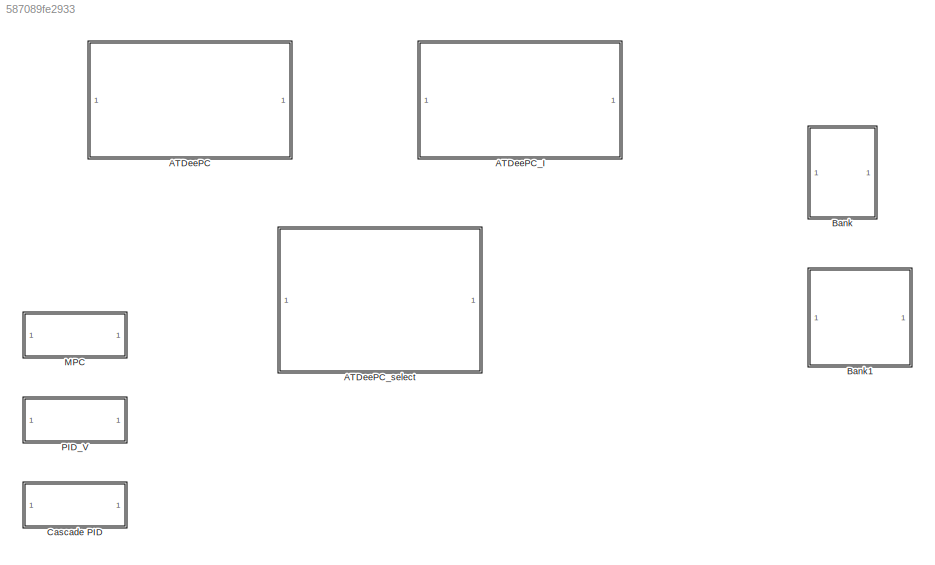
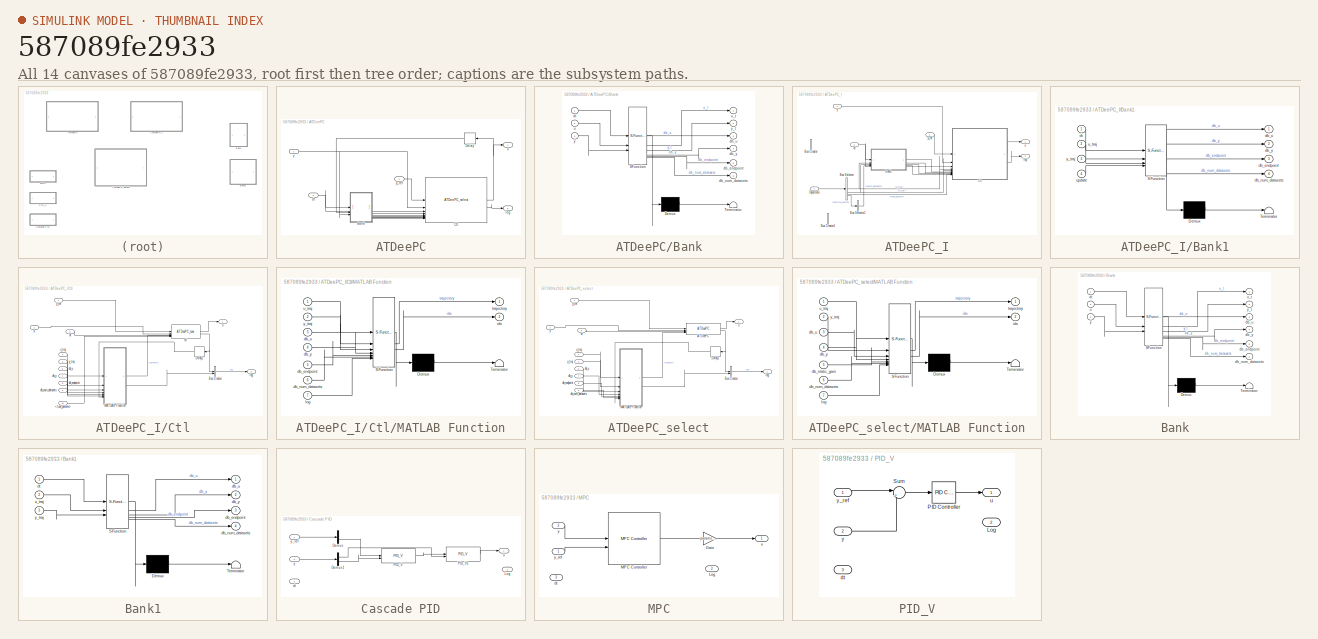
[diagram: thumbnail index - all 14 canvases of the model, root first then tree order]
MODEL slx_587089fe2933
KIND library
CONFIG AbsTol = auto
CONFIG EnableMultiTasking = off
CONFIG FixedStep = auto
CONFIG MaxStep = auto
CONFIG MinStep = auto
CONFIG RelTol = 1e-3
CONFIG SampleTimeConstraint = Unconstrained
CONFIG SolverName = VariableStepAuto
CONFIG StartTime = 0.0
CONFIG StopTime = 10.0
BLOCK [SubSystem] ATDeePC
  Tag = controller;
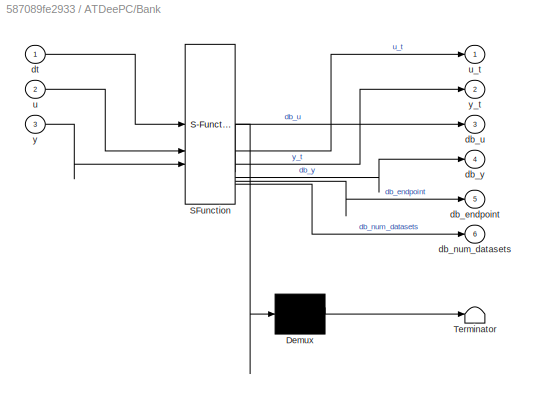
BLOCK [SubSystem] ATDeePC/Bank
  ErrorFcn = Stateflow.Translate.translate
  PermitHierarchicalResolution = ExplicitOnly
  SFBlockType = MATLAB Function
  TreatAsAtomicUnit = on
BLOCK [Demux] ATDeePC/Bank/ Demux 
  Outputs = 1
BLOCK [S-Function] ATDeePC/Bank/ SFunction 
  EnableBusSupport = off
  FunctionName = sf_sfun
  Parameters = data,db_params
  PortCounts = [3 7]
  SFcnIsStateOwnerBlock = off
  SFunctionDeploymentMode = off
  Tag = Stateflow S-Function 1
BLOCK [Terminator] ATDeePC/Bank/ Terminator 
BLOCK [Outport] ATDeePC/Bank/db_endpoint
  Port = 5
BLOCK [Outport] ATDeePC/Bank/db_num_datasets
  Port = 6
BLOCK [Outport] ATDeePC/Bank/db_u
  Port = 3
BLOCK [Outport] ATDeePC/Bank/db_y
  Port = 4
BLOCK [Inport] ATDeePC/Bank/dt
BLOCK [Inport] ATDeePC/Bank/u
  Port = 2
BLOCK [Outport] ATDeePC/Bank/u_t
BLOCK [Inport] ATDeePC/Bank/y
  Port = 3
BLOCK [Outport] ATDeePC/Bank/y_t
  Port = 2
BLOCK [Reference] ATDeePC/Ctl  REF=$bdroot/ATDeePC_select
  SourceBlock = $bdroot/ATDeePC_select
  SourceType = SubSystem
BLOCK [Delay] ATDeePC/Delay
  DelayLength = 1
  InputPortMap = u0
  NameLocation = top
BLOCK [Inport] ATDeePC/dt
  Port = 3
BLOCK [Outport] ATDeePC/log
  Port = 2
BLOCK [Outport] ATDeePC/u
BLOCK [Inport] ATDeePC/y
  Port = 2
BLOCK [Inport] ATDeePC/y_ref
BLOCK [SubSystem] ATDeePC_I
  Tag = controller;
BLOCK [SubSystem] ATDeePC_I/Bank1
  ErrorFcn = Stateflow.Translate.translate
  PermitHierarchicalResolution = ExplicitOnly
  SFBlockType = MATLAB Function
  TreatAsAtomicUnit = on
BLOCK [Demux] ATDeePC_I/Bank1/ Demux 
  Outputs = 1
BLOCK [S-Function] ATDeePC_I/Bank1/ SFunction 
  EnableBusSupport = off
  FunctionName = sf_sfun
  Parameters = data,db_params
  PortCounts = [4 5]
  SFcnIsStateOwnerBlock = off
  SFunctionDeploymentMode = off
  Tag = Stateflow S-Function 5
BLOCK [Terminator] ATDeePC_I/Bank1/ Terminator 
BLOCK [Outport] ATDeePC_I/Bank1/db_endpoint
  Port = 3
BLOCK [Outport] ATDeePC_I/Bank1/db_num_datasets
  Port = 4
BLOCK [Outport] ATDeePC_I/Bank1/db_u
BLOCK [Outport] ATDeePC_I/Bank1/db_y
  Port = 2
BLOCK [Inport] ATDeePC_I/Bank1/dt
BLOCK [Inport] ATDeePC_I/Bank1/u_traj
  Port = 2
BLOCK [Inport] ATDeePC_I/Bank1/update
  Port = 4
BLOCK [Inport] ATDeePC_I/Bank1/y_traj
  Port = 3
BLOCK [BusCreator] ATDeePC_I/Bus Creator
  DisplayOption = bar
  InheritFromInputs = on
  Inputs = 4
BLOCK [BusCreator] ATDeePC_I/Bus Creator1
  DisplayOption = bar
  InheritFromInputs = on
  Inputs = 1
BLOCK [BusSelector] ATDeePC_I/Bus Selector
  OutputSignals = u_traj,y_traj,tune_params,runtime_config
BLOCK [BusSelector] ATDeePC_I/Bus Selector1
  OutputSignals = record_datasets
BLOCK [SubSystem] ATDeePC_I/Ctl
  TreatAsAtomicUnit = on
BLOCK [Inport] ATDeePC_I/Ctl/<tune_params>
  Port = 10
BLOCK [BusCreator] ATDeePC_I/Ctl/Bus Creator
  DisplayOption = bar
  InheritFromInputs = on
  Inputs = 2
BLOCK [Delay] ATDeePC_I/Ctl/Delay1
  DelayLength = 1
  InputPortMap = u0
  NameLocation = top
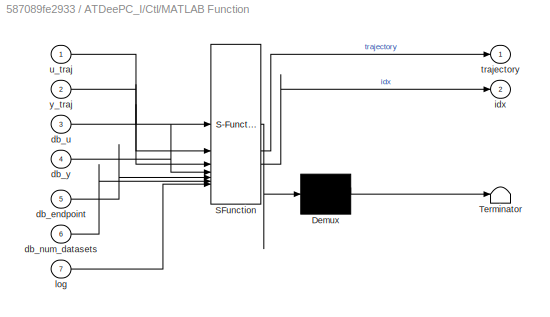
BLOCK [SubSystem] ATDeePC_I/Ctl/MATLAB Function
  ErrorFcn = Stateflow.Translate.translate
  PermitHierarchicalResolution = ExplicitOnly
  SFBlockType = MATLAB Function
  TreatAsAtomicUnit = on
BLOCK [Demux] ATDeePC_I/Ctl/MATLAB Function/ Demux 
  Outputs = 1
BLOCK [S-Function] ATDeePC_I/Ctl/MATLAB Function/ SFunction 
  EnableBusSupport = off
  FunctionName = sf_sfun
  Parameters = data,db_params
  PortCounts = [7 3]
  SFcnIsStateOwnerBlock = off
  SFunctionDeploymentMode = off
  Tag = Stateflow S-Function 6
BLOCK [Terminator] ATDeePC_I/Ctl/MATLAB Function/ Terminator 
BLOCK [Inport] ATDeePC_I/Ctl/MATLAB Function/db_endpoint
  Port = 5
BLOCK [Inport] ATDeePC_I/Ctl/MATLAB Function/db_num_datasets
  Port = 6
BLOCK [Inport] ATDeePC_I/Ctl/MATLAB Function/db_u
  Port = 3
BLOCK [Inport] ATDeePC_I/Ctl/MATLAB Function/db_y
  Port = 4
BLOCK [Outport] ATDeePC_I/Ctl/MATLAB Function/idx
  Port = 2
BLOCK [Inport] ATDeePC_I/Ctl/MATLAB Function/log
  Port = 7
BLOCK [Outport] ATDeePC_I/Ctl/MATLAB Function/trajectory
BLOCK [Inport] ATDeePC_I/Ctl/MATLAB Function/u_traj
BLOCK [Inport] ATDeePC_I/Ctl/MATLAB Function/y_traj
  Port = 2
BLOCK [Reference] ATDeePC_I/Ctl/ctl  REF=sim_lib/Controllers/ATDeePC_tune
  SourceBlock = sim_lib/Controllers/ATDeePC_tune
  Tag = controller;m_controller;
BLOCK [Inport] ATDeePC_I/Ctl/db_endpoint
  Port = 8
BLOCK [Inport] ATDeePC_I/Ctl/db_num_datasets
  Port = 9
BLOCK [Inport] ATDeePC_I/Ctl/db_u
  Port = 6
BLOCK [Inport] ATDeePC_I/Ctl/db_y
  Port = 7
BLOCK [Inport] ATDeePC_I/Ctl/dt
  Port = 3
BLOCK [Outport] ATDeePC_I/Ctl/log
  Port = 2
BLOCK [Outport] ATDeePC_I/Ctl/u
BLOCK [Inport] ATDeePC_I/Ctl/u_traj
  Port = 4
BLOCK [Inport] ATDeePC_I/Ctl/y
  Port = 2
BLOCK [Inport] ATDeePC_I/Ctl/y_ref
BLOCK [Inport] ATDeePC_I/Ctl/y_traj
  Port = 5
BLOCK [Inport] ATDeePC_I/InputData
  Port = 4
BLOCK [Inport] ATDeePC_I/dt
  Port = 3
BLOCK [Outport] ATDeePC_I/log
  Port = 2
BLOCK [Outport] ATDeePC_I/u
BLOCK [Inport] ATDeePC_I/y
  Port = 2
BLOCK [Inport] ATDeePC_I/y_ref
BLOCK [SubSystem] ATDeePC_select
  TreatAsAtomicUnit = on
BLOCK [Reference] ATDeePC_select/ATDeePC  REF=data_driven_lib_ctl/ATDeePC
  SourceBlock = data_driven_lib_ctl/ATDeePC
  Tag = __cs_comptype:ctl;__cs_compimpl:mat;
BLOCK [BusCreator] ATDeePC_select/Bus Creator
  DisplayOption = bar
  InheritFromInputs = on
  Inputs = 2
BLOCK [Delay] ATDeePC_select/Delay1
  DelayLength = 1
  InputPortMap = u0
  NameLocation = top
BLOCK [SubSystem] ATDeePC_select/MATLAB Function
  ErrorFcn = Stateflow.Translate.translate
  PermitHierarchicalResolution = ExplicitOnly
  SFBlockType = MATLAB Function
  TreatAsAtomicUnit = on
BLOCK [Demux] ATDeePC_select/MATLAB Function/ Demux 
  Outputs = 1
BLOCK [S-Function] ATDeePC_select/MATLAB Function/ SFunction 
  EnableBusSupport = off
  FunctionName = sf_sfun
  Parameters = data,db_params
  PortCounts = [7 3]
  SFcnIsStateOwnerBlock = off
  SFunctionDeploymentMode = off
  Tag = Stateflow S-Function 2
BLOCK [Terminator] ATDeePC_select/MATLAB Function/ Terminator 
BLOCK [Inport] ATDeePC_select/MATLAB Function/db_num_datasets
  Port = 6
BLOCK [Inport] ATDeePC_select/MATLAB Function/db_static_gain
  Port = 5
BLOCK [Inport] ATDeePC_select/MATLAB Function/db_u
  Port = 3
BLOCK [Inport] ATDeePC_select/MATLAB Function/db_y
  Port = 4
BLOCK [Outport] ATDeePC_select/MATLAB Function/idx
  Port = 2
BLOCK [Inport] ATDeePC_select/MATLAB Function/log
  Port = 7
BLOCK [Outport] ATDeePC_select/MATLAB Function/trajectory
BLOCK [Inport] ATDeePC_select/MATLAB Function/u_traj
BLOCK [Inport] ATDeePC_select/MATLAB Function/y_traj
  Port = 2
BLOCK [Inport] ATDeePC_select/db_endpoint
  Port = 8
BLOCK [Inport] ATDeePC_select/db_num_datasets
  Port = 9
BLOCK [Inport] ATDeePC_select/db_u
  Port = 6
BLOCK [Inport] ATDeePC_select/db_y
  Port = 7
BLOCK [Inport] ATDeePC_select/dt
  Port = 3
BLOCK [Outport] ATDeePC_select/log
  Port = 2
BLOCK [Outport] ATDeePC_select/u
BLOCK [Inport] ATDeePC_select/u_traj
  Port = 4
BLOCK [Inport] ATDeePC_select/y
  Port = 2
BLOCK [Inport] ATDeePC_select/y_ref
BLOCK [Inport] ATDeePC_select/y_traj
  Port = 5
BLOCK [SubSystem] Bank
  ErrorFcn = Stateflow.Translate.translate
  PermitHierarchicalResolution = ExplicitOnly
  SFBlockType = MATLAB Function
  TreatAsAtomicUnit = on
BLOCK [Demux] Bank/ Demux 
  Outputs = 1
BLOCK [S-Function] Bank/ SFunction 
  EnableBusSupport = off
  FunctionName = sf_sfun
  Parameters = data,db_params
  PortCounts = [3 7]
  SFcnIsStateOwnerBlock = off
  SFunctionDeploymentMode = off
  Tag = Stateflow S-Function 3
BLOCK [Terminator] Bank/ Terminator 
BLOCK [Outport] Bank/db_endpoint
  Port = 5
BLOCK [Outport] Bank/db_num_datasets
  Port = 6
BLOCK [Outport] Bank/db_u
  Port = 3
BLOCK [Outport] Bank/db_y
  Port = 4
BLOCK [Inport] Bank/dt
BLOCK [Inport] Bank/u
  Port = 2
BLOCK [Outport] Bank/u_t
BLOCK [Inport] Bank/y
  Port = 3
BLOCK [Outport] Bank/y_t
  Port = 2
BLOCK [SubSystem] Bank1
  ErrorFcn = Stateflow.Translate.translate
  PermitHierarchicalResolution = ExplicitOnly
  SFBlockType = MATLAB Function
  TreatAsAtomicUnit = on
BLOCK [Demux] Bank1/ Demux 
  Outputs = 1
BLOCK [S-Function] Bank1/ SFunction 
  EnableBusSupport = off
  FunctionName = sf_sfun
  Parameters = data,db_params
  PortCounts = [3 5]
  SFcnIsStateOwnerBlock = off
  SFunctionDeploymentMode = off
  Tag = Stateflow S-Function 4
BLOCK [Terminator] Bank1/ Terminator 
BLOCK [Outport] Bank1/db_endpoint
  Port = 3
BLOCK [Outport] Bank1/db_num_datasets
  Port = 4
BLOCK [Outport] Bank1/db_u
BLOCK [Outport] Bank1/db_y
  Port = 2
BLOCK [Inport] Bank1/dt
BLOCK [Inport] Bank1/u_traj
  Port = 2
BLOCK [Inport] Bank1/y_traj
  Port = 3
BLOCK [SubSystem] Cascade PID
BLOCK [Demux] Cascade PID/Demux
  Outputs = 2
BLOCK [Demux] Cascade PID/Demux1
  Outputs = 2
BLOCK [Outport] Cascade PID/Log
  Port = 2
BLOCK [Reference] Cascade PID/PID_V  REF=$bdroot/PID_V
  SourceBlock = $bdroot/PID_V
BLOCK [Reference] Cascade PID/PID_V1  REF=$bdroot/PID_V
  SourceBlock = $bdroot/PID_V
BLOCK [Inport] Cascade PID/dt
  Port = 3
BLOCK [Outport] Cascade PID/u
BLOCK [Inport] Cascade PID/y
  Port = 2
BLOCK [Inport] Cascade PID/y_ref
BLOCK [SubSystem] MPC
BLOCK [Gain] MPC/Gain
  Gain = params.gain
BLOCK [Outport] MPC/Log
  Port = 2
BLOCK [Reference] MPC/MPC Controller  REF=mpclib/MPC Controller  (lib defined in mdl_ae329e0e0455)
  SCDEnableBlockLinearizationSpecification = on
  SourceBlock = mpclib/MPC Controller
  SourceType = MPC
BLOCK [Inport] MPC/dt
  Port = 3
BLOCK [Outport] MPC/u
BLOCK [Inport] MPC/y
  Port = 2
BLOCK [Inport] MPC/y_ref
BLOCK [SubSystem] PID_V
BLOCK [Outport] PID_V/Log
  Port = 2
BLOCK [Reference] PID_V/PID Controller  REF=slpidlib/PID Controller
  LibrarySourceBlock = simulink/Continuous/PID Controller
  SourceBlock = slpidlib/PID Controller
  SourceType = PID 1dof
BLOCK [Sum] PID_V/Sum
  Inputs = |+-
BLOCK [Inport] PID_V/dt
  Port = 3
BLOCK [Outport] PID_V/u
BLOCK [Inport] PID_V/y
  Port = 2
BLOCK [Inport] PID_V/y_ref
LINE ATDeePC/Bank:1 -> ATDeePC/Ctl:4
LINE ATDeePC/Bank:2 -> ATDeePC/Ctl:5
LINE ATDeePC/Bank:3 -> ATDeePC/Ctl:6
LINE ATDeePC/Bank:4 -> ATDeePC/Ctl:7
LINE ATDeePC/Bank:5 -> ATDeePC/Ctl:8
LINE ATDeePC/Bank:6 -> ATDeePC/Ctl:9
NET ATDeePC/Ctl:1 -> ATDeePC/Delay:1, ATDeePC/u:1
LINE ATDeePC/Ctl:2 -> ATDeePC/log:1
LINE ATDeePC/Delay:1 -> ATDeePC/Bank:2
NET ATDeePC/dt:1 -> ATDeePC/Bank:1, ATDeePC/Ctl:3
NET ATDeePC/y:1 -> ATDeePC/Bank:3, ATDeePC/Ctl:2
LINE ATDeePC/y_ref:1 -> ATDeePC/Ctl:1
LINE ATDeePC_I/Bank1:1 -> ATDeePC_I/Ctl:6
LINE ATDeePC_I/Bank1:2 -> ATDeePC_I/Ctl:7
LINE ATDeePC_I/Bank1:3 -> ATDeePC_I/Ctl:8
LINE ATDeePC_I/Bank1:4 -> ATDeePC_I/Ctl:9
LINE ATDeePC_I/Bus Selector1:1 -> ATDeePC_I/Bank1:4
NET ATDeePC_I/Bus Selector:1 -> ATDeePC_I/Bank1:2, ATDeePC_I/Ctl:4
NET ATDeePC_I/Bus Selector:2 -> ATDeePC_I/Bank1:3, ATDeePC_I/Ctl:5
LINE ATDeePC_I/Bus Selector:3 -> ATDeePC_I/Ctl:10
LINE ATDeePC_I/Bus Selector:4 -> ATDeePC_I/Bus Selector1:1
LINE ATDeePC_I/Ctl/<tune_params>:1 -> ATDeePC_I/Ctl/ctl:5
LINE ATDeePC_I/Ctl/Bus Creator:1 -> ATDeePC_I/Ctl/log:1
LINE ATDeePC_I/Ctl/Delay1:1 -> ATDeePC_I/Ctl/MATLAB Function:7
LINE ATDeePC_I/Ctl/MATLAB Function:1 -> ATDeePC_I/Ctl/ctl:4
LINE ATDeePC_I/Ctl/MATLAB Function:2 -> ATDeePC_I/Ctl/Bus Creator:2
LINE ATDeePC_I/Ctl/ctl:1 -> ATDeePC_I/Ctl/u:1
NET ATDeePC_I/Ctl/ctl:2 -> ATDeePC_I/Ctl/Bus Creator:1, ATDeePC_I/Ctl/Delay1:1
LINE ATDeePC_I/Ctl/db_endpoint:1 -> ATDeePC_I/Ctl/MATLAB Function:5
LINE ATDeePC_I/Ctl/db_num_datasets:1 -> ATDeePC_I/Ctl/MATLAB Function:6
LINE ATDeePC_I/Ctl/db_u:1 -> ATDeePC_I/Ctl/MATLAB Function:3
LINE ATDeePC_I/Ctl/db_y:1 -> ATDeePC_I/Ctl/MATLAB Function:4
LINE ATDeePC_I/Ctl/dt:1 -> ATDeePC_I/Ctl/ctl:3
LINE ATDeePC_I/Ctl/u_traj:1 -> ATDeePC_I/Ctl/MATLAB Function:1
LINE ATDeePC_I/Ctl/y:1 -> ATDeePC_I/Ctl/ctl:2
LINE ATDeePC_I/Ctl/y_ref:1 -> ATDeePC_I/Ctl/ctl:1
LINE ATDeePC_I/Ctl/y_traj:1 -> ATDeePC_I/Ctl/MATLAB Function:2
LINE ATDeePC_I/Ctl:1 -> ATDeePC_I/u:1
LINE ATDeePC_I/Ctl:2 -> ATDeePC_I/log:1
LINE ATDeePC_I/InputData:1 -> ATDeePC_I/Bus Selector:1
NET ATDeePC_I/dt:1 -> ATDeePC_I/Bank1:1, ATDeePC_I/Ctl:3
LINE ATDeePC_I/y:1 -> ATDeePC_I/Ctl:2
LINE ATDeePC_I/y_ref:1 -> ATDeePC_I/Ctl:1
LINE ATDeePC_select/ATDeePC:1 -> ATDeePC_select/u:1
NET ATDeePC_select/ATDeePC:2 -> ATDeePC_select/Bus Creator:1, ATDeePC_select/Delay1:1
LINE ATDeePC_select/Bus Creator:1 -> ATDeePC_select/log:1
LINE ATDeePC_select/Delay1:1 -> ATDeePC_select/MATLAB Function:7
LINE ATDeePC_select/MATLAB Function:1 -> ATDeePC_select/ATDeePC:4
LINE ATDeePC_select/MATLAB Function:2 -> ATDeePC_select/Bus Creator:2
LINE ATDeePC_select/db_endpoint:1 -> ATDeePC_select/MATLAB Function:5
LINE ATDeePC_select/db_num_datasets:1 -> ATDeePC_select/MATLAB Function:6
LINE ATDeePC_select/db_u:1 -> ATDeePC_select/MATLAB Function:3
LINE ATDeePC_select/db_y:1 -> ATDeePC_select/MATLAB Function:4
LINE ATDeePC_select/dt:1 -> ATDeePC_select/ATDeePC:3
LINE ATDeePC_select/u_traj:1 -> ATDeePC_select/MATLAB Function:1
LINE ATDeePC_select/y:1 -> ATDeePC_select/ATDeePC:2
LINE ATDeePC_select/y_ref:1 -> ATDeePC_select/ATDeePC:1
LINE ATDeePC_select/y_traj:1 -> ATDeePC_select/MATLAB Function:2
LINE Cascade PID/Demux1:1 -> Cascade PID/PID_V1:2
LINE Cascade PID/Demux1:2 -> Cascade PID/PID_V:2
LINE Cascade PID/Demux:2 -> Cascade PID/PID_V:1
LINE Cascade PID/PID_V1:1 -> Cascade PID/u:1
LINE Cascade PID/PID_V:1 -> Cascade PID/PID_V1:1
LINE Cascade PID/y:1 -> Cascade PID/Demux1:1
LINE Cascade PID/y_ref:1 -> Cascade PID/Demux:1
LINE MPC/Gain:1 -> MPC/u:1
LINE MPC/MPC Controller:1 -> MPC/Gain:1
LINE MPC/y:1 -> MPC/MPC Controller:1
LINE MPC/y_ref:1 -> MPC/MPC Controller:2
LINE PID_V/PID Controller:1 -> PID_V/u:1
LINE PID_V/Sum:1 -> PID_V/PID Controller:1
LINE PID_V/y:1 -> PID_V/Sum:2
LINE PID_V/y_ref:1 -> PID_V/Sum:1
note: NET lines group one-source signal fan-out (src -> all destinations, sorted); 1:1 wires keep LINE
CHART ATDeePC/Bank states=1 transitions=1
  STATE_LABEL 'eML_blk_kernel()'
  STATE_LABEL 'SCRIPT:\nfunction [u_t, y_t, db_u, db_y, db_endpoint, db_num_datasets] = fcn(dt, u, y, db_params, data)\n\n    persistent t u_traj y_traj last_changed_t db_u_p db_y_p db_endpoint_p db_num_datasets_p    \n\n    traj_len = data.T;\n    if isempty(t)\n        t = 0;\n        last_changed_t = 0;\n        db_num_datasets_p = db_params.num_datasets_in_bank;\n        db_u_p = zeros(db_params.dataset_bank_size, dat...<+1096ch>'
CHART ATDeePC_select/MATLAB Function states=1 transitions=1
  STATE_LABEL 'eML_blk_kernel()'
  STATE_LABEL "SCRIPT:\nfunction [trajectory, idx] = fcn(u_traj, y_traj, db_u, db_y, db_static_gain, db_num_datasets, log, db_params, data)\n\n    persistent last_n_ds trajectory_p i\n\n    if isempty(last_n_ds)\n        last_n_ds = 1;\n        i = last_n_ds;\n        trajectory_p = struct( ...\n            'D_u', zeros(data.T, data.m), ...\n            'D_y', zeros(data.T, data.p), ...\n            'static_gain', zeros(da...<+1286ch>"
CHART Bank states=1 transitions=1
  STATE_LABEL 'eML_blk_kernel()'
  STATE_LABEL 'SCRIPT:\nfunction [u_t, y_t, db_u, db_y, db_endpoint, db_num_datasets] = fcn(dt, u, y, db_params, data)\n\n    persistent t u_traj y_traj last_changed_t db_u_p db_y_p db_endpoint_p db_num_datasets_p    \n\n    traj_len = data.T;\n    if isempty(t)\n        u_traj = zeros(traj_len, data.m);\n        y_traj = zeros(traj_len, data.p);\n        t = 0;\n        db_num_datasets_p = db_params.num_datasets_in_bank;...<+1096ch>'
CHART Bank1 states=1 transitions=1
  STATE_LABEL 'eML_blk_kernel()'
  STATE_LABEL 'SCRIPT:\nfunction [db_u, db_y, db_endpoint, db_num_datasets] = fcn(dt, u_traj, y_traj, db_params, data)\n\n    persistent t last_changed_t db_u_p db_y_p db_endpoint_p db_num_datasets_p\n    \n    if isempty(t)\n        t = 0;\n        db_num_datasets_p = db_params.num_datasets_in_bank;\n        db_u_p = zeros(db_params.dataset_bank_size, data.m, data.T);\n        db_y_p = zeros(db_params.dataset_bank_size,...<+661ch>'
CHART ATDeePC_I/Bank1 states=1 transitions=1
  STATE_LABEL 'eML_blk_kernel()'
  STATE_LABEL 'SCRIPT:\nfunction [db_u, db_y, db_endpoint, db_num_datasets] = fcn(dt, u_traj, y_traj, update, db_params, data)\n\n    persistent t last_changed_t db_u_p db_y_p db_endpoint_p db_num_datasets_p\n    \n    if isempty(t)\n        t = 0;\n        db_num_datasets_p = db_params.num_datasets_in_bank;\n        db_u_p = zeros(db_params.dataset_bank_size, data.m, data.T);\n        db_y_p = zeros(db_params.dataset_ba...<+840ch>'
CHART ATDeePC_I/Ctl/MATLAB Function states=1 transitions=1
  STATE_LABEL 'eML_blk_kernel()'
  STATE_LABEL "SCRIPT:\nfunction [trajectory, idx] = fcn(u_traj, y_traj, db_u, db_y, db_endpoint, db_num_datasets, log, db_params, data)\n\n    persistent last_n_ds trajectory_p i\n\n    if isempty(last_n_ds)\n        last_n_ds = 1;\n        i = last_n_ds;\n        trajectory_p = struct( ...\n            'D_u', zeros(data.m, data.T), ...\n            'D_y', zeros(data.p, data.T), ...\n            'end_point', zeros(data.m)...<+1124ch>"
CHART  states=0 transitions=0
CHART  states=0 transitions=0
CHART  states=0 transitions=0
CHART  states=0 transitions=0
CHART  states=0 transitions=0
CHART  states=0 transitions=0
